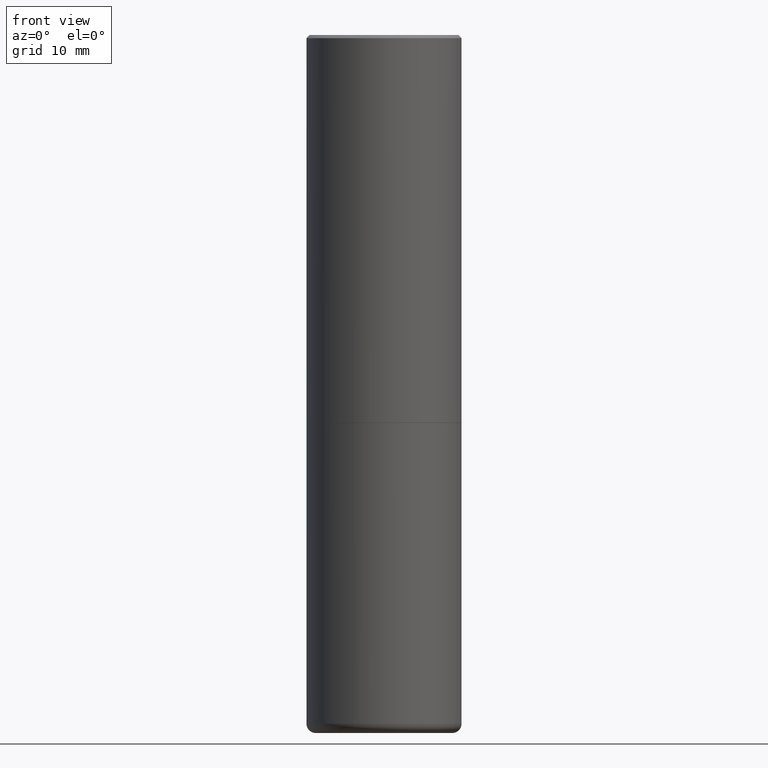
[diagram: clean part render]
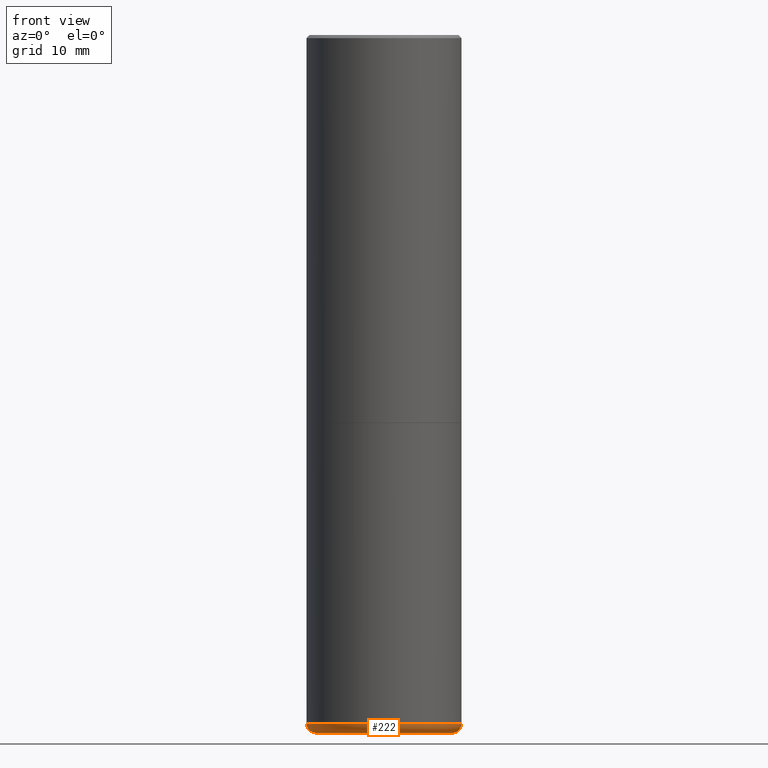
[diagram: same view with one face highlighted and labeled with its STEP entity id]
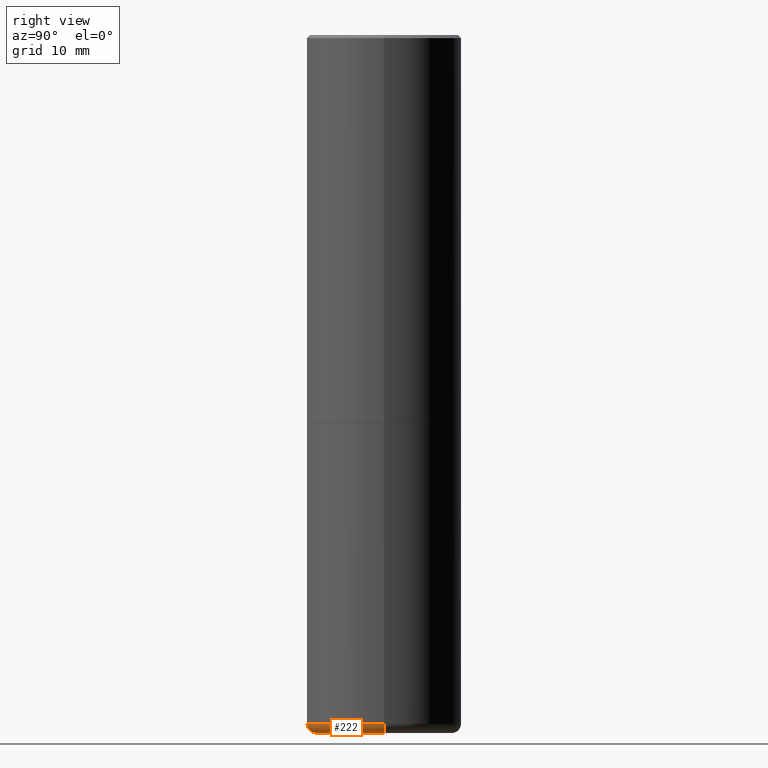
[diagram: same view with one face highlighted and labeled with its STEP entity id]
A machine part, front view. The second image highlights one B-rep face of the part: STEP entity #222.
A second angle (right view) of the same face is appended — the face is thin or edge-on in the first view.
In plain terms, the highlighted toroidal blend (fillet) surface has major radius 11.176 mm and minor (blend) radius 1.524 mm.
Its self-contained STEP definition (entity closure, byte-faithful):
#16 = EDGE_LOOP ( 'NONE', ( #411, #406, #53, #126 ) ) ;
#21 = DIRECTION ( 'NONE',  ( -2.445468806185136597E-29, 3.491481338843145583E-15, 1.000000000000000000 ) ) ;
#32 = DIRECTION ( 'NONE',  ( 1.000000000000000000, -6.982962677686262766E-15, 0.000000000000000000 ) ) ;
#34 = DIRECTION ( 'NONE',  ( 7.105427357601001859E-15, 1.000000000000000000, -3.491481338843145583E-15 ) ) ;
#38 = CARTESIAN_POINT ( 'NONE',  ( 0.4400000000000000022, -1.857468072264552372E-14, -4.440000000000000391 ) ) ;
#53 = ORIENTED_EDGE ( 'NONE', *, *, #176, .T. ) ;
#58 = DIRECTION ( 'NONE',  ( -2.445468806185136597E-29, 3.491481338843145583E-15, 1.000000000000000000 ) ) ;
#80 = AXIS2_PLACEMENT_3D ( 'NONE', #94, #34, #393 ) ;
#94 = CARTESIAN_POINT ( 'NONE',  ( -0.4400000000000000022, -1.237578910711912656E-14, -4.440000000000000391 ) ) ;
#97 = CIRCLE ( 'NONE', #80, 0.05999999999999969941 ) ;
#105 = AXIS2_PLACEMENT_3D ( 'NONE', #277, #58, #32 ) ;
#107 = CARTESIAN_POINT ( 'NONE',  ( -0.4400000000000000022, -1.226737072655639127E-14, -4.499999999999999112 ) ) ;
#115 = VERTEX_POINT ( 'NONE', #107 ) ;
#117 = CARTESIAN_POINT ( 'NONE',  ( -0.4999999999999998335, -1.194946346566306765E-14, -4.440000000000000391 ) ) ;
#126 = ORIENTED_EDGE ( 'NONE', *, *, #259, .F. ) ;
#158 = VERTEX_POINT ( 'NONE', #344 ) ;
#172 = DIRECTION ( 'NONE',  ( -6.982962677686266711E-15, -1.000000000000000000, 3.491481338843145583E-15 ) ) ;
#176 = EDGE_CURVE ( 'NONE', #312, #158, #322, .T. ) ;
#181 = AXIS2_PLACEMENT_3D ( 'NONE', #38, #172, #313 ) ;
#196 = AXIS2_PLACEMENT_3D ( 'NONE', #352, #21, #329 ) ;
#202 = VERTEX_POINT ( 'NONE', #117 ) ;
#222 = ADVANCED_FACE ( 'NONE', ( #257 ), #391, .T. ) ;
#231 = CARTESIAN_POINT ( 'NONE',  ( 0.4400000000000000022, -1.878416960297611046E-14, -4.499999999999999112 ) ) ;
#257 = FACE_OUTER_BOUND ( 'NONE', #16, .T. ) ;
#259 = EDGE_CURVE ( 'NONE', #202, #158, #280, .T. ) ;
#277 = CARTESIAN_POINT ( 'NONE',  ( 1.100460962783311244E-28, -1.571166602479415374E-14, -4.499999999999999112 ) ) ;
#280 = CIRCLE ( 'NONE', #196, 0.5000000000000001110 ) ;
#297 = DIRECTION ( 'NONE',  ( 1.000000000000000000, -6.982962677686270655E-15, 4.883557194083114583E-29 ) ) ;
#312 = VERTEX_POINT ( 'NONE', #231 ) ;
#313 = DIRECTION ( 'NONE',  ( 1.000000000000000000, -6.982962677686238312E-15, 0.000000000000000000 ) ) ;
#322 = CIRCLE ( 'NONE', #181, 0.05999999999999969941 ) ;
#329 = DIRECTION ( 'NONE',  ( 1.000000000000000000, -6.982962677686265133E-15, 0.000000000000000000 ) ) ;
#344 = CARTESIAN_POINT ( 'NONE',  ( 0.4999999999999998335, -1.899365848330670036E-14, -4.440000000000000391 ) ) ;
#346 = EDGE_CURVE ( 'NONE', #115, #202, #97, .T. ) ;
#352 = CARTESIAN_POINT ( 'NONE',  ( 1.085788149946200541E-28, -1.550217714446356700E-14, -4.440000000000000391 ) ) ;
#353 = AXIS2_PLACEMENT_3D ( 'NONE', #378, #384, #297 ) ;
#374 = EDGE_CURVE ( 'NONE', #115, #312, #377, .T. ) ;
#377 = CIRCLE ( 'NONE', #105, 0.4400000000000000022 ) ;
#378 = CARTESIAN_POINT ( 'NONE',  ( 1.085788149946200541E-28, -1.550217714446356700E-14, -4.440000000000000391 ) ) ;
#384 = DIRECTION ( 'NONE',  ( -2.445468806185136597E-29, 3.491481338843145583E-15, 1.000000000000000000 ) ) ;
#391 = TOROIDAL_SURFACE ( 'NONE', #353, 0.4400000000000000022, 0.05999999999999969941 ) ;
#393 = DIRECTION ( 'NONE',  ( -1.000000000000000000, 7.105427357600993970E-15, 0.000000000000000000 ) ) ;
#406 = ORIENTED_EDGE ( 'NONE', *, *, #374, .T. ) ;
#411 = ORIENTED_EDGE ( 'NONE', *, *, #346, .F. ) ;